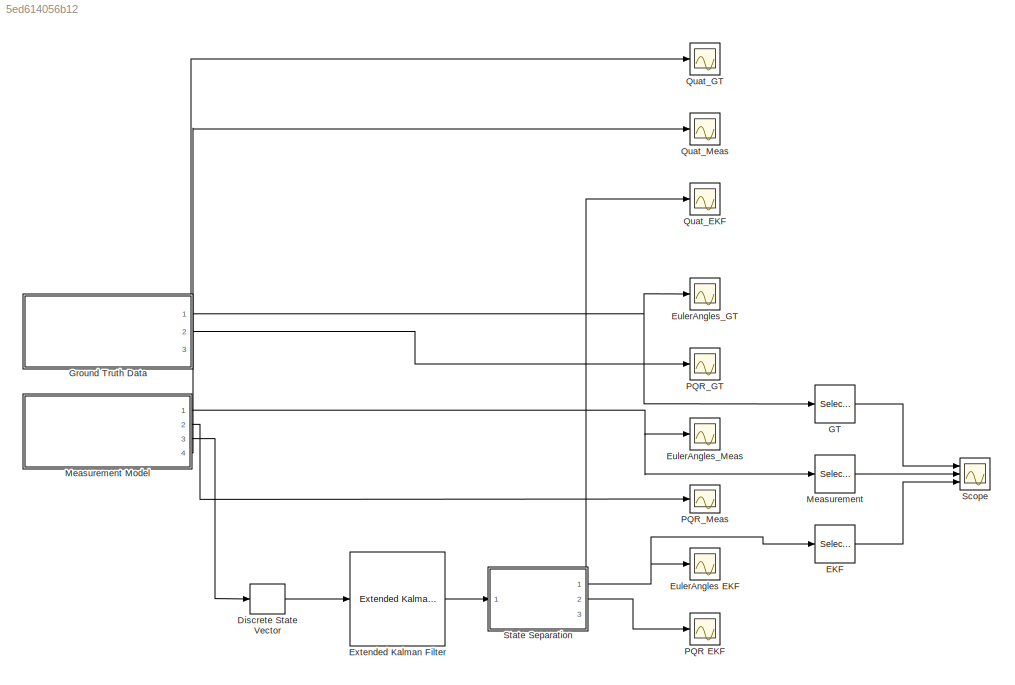
MODEL slx_5ed614056b12
KIND model
CONFIG AbsTol = auto
CONFIG EnableMultiTasking = off
CONFIG FixedStep = 0.1
CONFIG MaxStep = auto
CONFIG MinStep = auto
CONFIG RelTol = 1e-3
CONFIG SampleTimeConstraint = Unconstrained
CONFIG SolverName = FixedStepAuto
CONFIG StartTime = 0.0
CONFIG StopTime = 1000.0
BLOCK [ZeroOrderHold] Discrete State Vector
  SampleTime = Ts
BLOCK [Selector] EKF
  IndexOptions = Index vector (dialog)
  Indices = 2
  InputPortWidth = 3
  OutputSizes = 1
  Ports = [1, 1]
BLOCK [Scope] EulerAngles EKF
  Floating = off
  NumInputPorts = 1
  Ports = [1]
  ScopeSpecificationString = Simulink.scopes.TimeScopeBlockCfg('CurrentConfiguration', extmgr.ConfigurationSet(extmgr.Configuration('Core','General UI',true,'FigureColor',[1 1 1]),extmgr.Configuration('Core','Source UI',true),extmgr.Configuration('Sources','WiredSimulink',true,'DataLoggingVariableName','ScopeData3'),extmgr.Configuration('Visuals','Time Domain',true,'SerializedDisplays',{struct('MinYLimReal','-3.92656','MaxYLi...<+1839ch>
BLOCK [Scope] EulerAngles_GT
  Floating = off
  NumInputPorts = 1
  Ports = [1]
  ScopeSpecificationString = Simulink.scopes.TimeScopeBlockCfg('CurrentConfiguration', extmgr.ConfigurationSet(extmgr.Configuration('Core','General UI',true,'FigureColor',[1 1 1]),extmgr.Configuration('Core','Source UI',true),extmgr.Configuration('Sources','WiredSimulink',true,'DataLoggingVariableName','ScopeData1'),extmgr.Configuration('Visuals','Time Domain',true,'SerializedDisplays',{struct('MinYLimReal','-3.92667','MaxYLi...<+1883ch>
BLOCK [Scope] EulerAngles_Meas
  Floating = off
  NumInputPorts = 1
  Ports = [1]
  ScopeSpecificationString = Simulink.scopes.TimeScopeBlockCfg('CurrentConfiguration', extmgr.ConfigurationSet(extmgr.Configuration('Core','General UI',true,'FigureColor',[1 1 1]),extmgr.Configuration('Core','Source UI',true),extmgr.Configuration('Sources','WiredSimulink',true,'DataLoggingVariableName','ScopeData1'),extmgr.Configuration('Visuals','Time Domain',true,'SerializedDisplays',{struct('MinYLimReal','-3.92626','MaxYLi...<+1838ch>
BLOCK [Reference] Extended Kalman Filter  REF=sharedTrackingLibrary/Extended Kalman Filter
  Ports = [1, 1]
  SourceBlock = sharedTrackingLibrary/Extended Kalman Filter
  SourceProductBaseCode = AE,PW,CT,DR,TF,ID,LP,NV,AR,RO,RR,UV,VE
  SourceType = Extended Kalman Filter
BLOCK [Selector] GT
  IndexOptions = Index vector (dialog)
  Indices = 2
  InputPortWidth = 3
  OutputSizes = 1
  Ports = [1, 1]
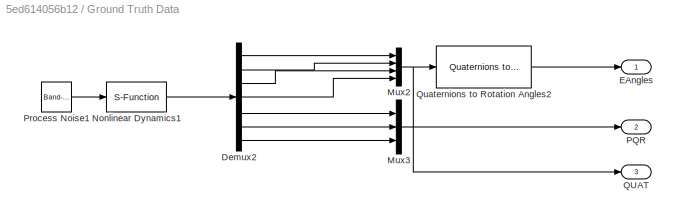
BLOCK [SubSystem] Ground Truth Data
  PortSchema = {"entries":[{"content":{"sides":[{"content":{"connectorIds":[]},"type":"ConnectorPlacement.EquallySpacedRectSide","uuid":"c56b2d2c-5651-4c6d-ac62-82145f13ec13"},{"content":{"connectorIds":["Out1","Out2"],"side":"RIGHT"},"type":"ConnectorPlacement.EquallySpacedRectSide","uuid":"522087ed-b7c5-4ea8-bed0-dd8f980d3eb3"},{"content":{"connectorIds":["Out3"],"side":"TOP"},"type":"ConnectorPlacement.Equall...<+248ch>
  Ports = [0, 3]
  RequestExecContextInheritance = off
BLOCK [Demux] Ground Truth Data/Demux2
  Outputs = 7
  Ports = [1, 7]
BLOCK [Outport] Ground Truth Data/EAngles
BLOCK [Mux] Ground Truth Data/Mux2
  DisplayOption = bar
  Ports = [4, 1]
BLOCK [Mux] Ground Truth Data/Mux3
  DisplayOption = bar
  Inputs = 3
  Ports = [3, 1]
BLOCK [S-Function] Ground Truth Data/Nonlinear Dynamics1
  EnableBusSupport = off
  FunctionName = sf_dyn
  Ports = [1, 1]
  SFcnIsStateOwnerBlock = off
  SFunctionDeploymentMode = off
BLOCK [Outport] Ground Truth Data/PQR
  Port = 2
BLOCK [Reference] Ground Truth Data/Process Noise1  REF=simulink/Sources/Band-Limited
White Noise
  Ports = [0, 1]
  SourceBlock = simulink/Sources/Band-Limited\nWhite Noise
  SourceProductBaseCode = SL
  SourceType = Band-Limited White Noise.
BLOCK [Outport] Ground Truth Data/QUAT
  Port = 3
BLOCK [Reference] Ground Truth Data/Quaternions to Rotation Angles2  REF=sharedtransform/Quaternions to Rotation Angles
  AttributesFormatString = Rotation Order: %<rotationOrder>
  Ports = [1, 1]
  SourceBlock = sharedtransform/Quaternions to Rotation Angles
  SourceProductBaseCode = AE,PW,DR,MT,UV,VE
  SourceType = Quat2Ang
BLOCK [Selector] Measurement
  IndexOptions = Index vector (dialog)
  Indices = 2
  InputPortWidth = 3
  OutputSizes = 1
  Ports = [1, 1]
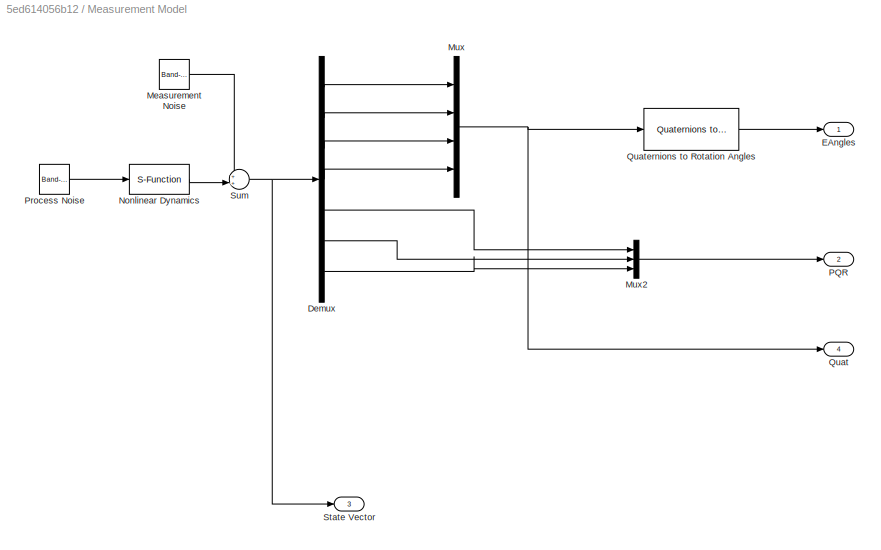
BLOCK [SubSystem] Measurement Model
  Ports = [0, 4]
  RequestExecContextInheritance = off
BLOCK [Demux] Measurement Model/Demux
  Outputs = 7
  Ports = [1, 7]
BLOCK [Outport] Measurement Model/EAngles
BLOCK [Reference] Measurement Model/Measurement Noise  REF=simulink/Sources/Band-Limited
White Noise
  Ports = [0, 1]
  SourceBlock = simulink/Sources/Band-Limited\nWhite Noise
  SourceProductBaseCode = SL
  SourceType = Band-Limited White Noise.
BLOCK [Mux] Measurement Model/Mux
  DisplayOption = bar
  Ports = [4, 1]
BLOCK [Mux] Measurement Model/Mux2
  DisplayOption = bar
  Inputs = 3
  Ports = [3, 1]
BLOCK [S-Function] Measurement Model/Nonlinear Dynamics
  EnableBusSupport = off
  FunctionName = sf_dyn
  Ports = [1, 1]
  SFcnIsStateOwnerBlock = off
  SFunctionDeploymentMode = off
BLOCK [Outport] Measurement Model/PQR
  Port = 2
BLOCK [Reference] Measurement Model/Process Noise  REF=simulink/Sources/Band-Limited
White Noise
  Ports = [0, 1]
  SourceBlock = simulink/Sources/Band-Limited\nWhite Noise
  SourceProductBaseCode = SL
  SourceType = Band-Limited White Noise.
BLOCK [Outport] Measurement Model/Quat
  Port = 4
BLOCK [Reference] Measurement Model/Quaternions to Rotation Angles  REF=sharedtransform/Quaternions to Rotation Angles
  AttributesFormatString = Rotation Order: %<rotationOrder>
  Ports = [1, 1]
  SourceBlock = sharedtransform/Quaternions to Rotation Angles
  SourceProductBaseCode = AE,PW,DR,MT,UV,VE
  SourceType = Quat2Ang
BLOCK [Outport] Measurement Model/State Vector
  Port = 3
BLOCK [Sum] Measurement Model/Sum
  Inputs = ++|
  Ports = [2, 1]
BLOCK [Scope] PQR EKF
  Floating = off
  NumInputPorts = 1
  Ports = [1]
  ScopeSpecificationString = Simulink.scopes.TimeScopeBlockCfg('CurrentConfiguration', extmgr.ConfigurationSet(extmgr.Configuration('Core','General UI',true),extmgr.Configuration('Core','Source UI',true),extmgr.Configuration('Sources','WiredSimulink',true,'DataLoggingVariableName','ScopeData4'),extmgr.Configuration('Visuals','Time Domain',true,'SerializedDisplays',{struct('MinYLimReal','-0.00053','MaxYLimReal','0.01139','YLab...<+1509ch>
BLOCK [Scope] PQR_GT
  Floating = off
  NumInputPorts = 1
  Ports = [1]
  ScopeSpecificationString = Simulink.scopes.TimeScopeBlockCfg('CurrentConfiguration', extmgr.ConfigurationSet(extmgr.Configuration('Core','General UI',true),extmgr.Configuration('Core','Source UI',true),extmgr.Configuration('Sources','WiredSimulink',true,'DataLoggingVariableName','ScopeData2'),extmgr.Configuration('Visuals','Time Domain',true,'SerializedDisplays',{struct('MinYLimReal','-0.00125','MaxYLimReal','0.01125','YLab...<+1462ch>
BLOCK [Scope] PQR_Meas
  Floating = off
  NumInputPorts = 1
  Ports = [1]
  ScopeSpecificationString = Simulink.scopes.TimeScopeBlockCfg('CurrentConfiguration', extmgr.ConfigurationSet(extmgr.Configuration('Core','General UI',true),extmgr.Configuration('Core','Source UI',true),extmgr.Configuration('Sources','WiredSimulink',true,'DataLoggingVariableName','ScopeData1'),extmgr.Configuration('Visuals','Time Domain',true,'SerializedDisplays',{struct('MinYLimReal','-0.00224','MaxYLimReal','0.01224','YLab...<+1464ch>
BLOCK [Scope] Quat_EKF
  Floating = off
  NumInputPorts = 1
  Ports = [1]
  ScopeSpecificationString = Simulink.scopes.TimeScopeBlockCfg('CurrentConfiguration', extmgr.ConfigurationSet(extmgr.Configuration('Core','General UI',true),extmgr.Configuration('Core','Source UI',true),extmgr.Configuration('Sources','WiredSimulink',true,'DataLoggingVariableName','ScopeData8'),extmgr.Configuration('Visuals','Time Domain',true,'SerializedDisplays',{struct('MinYLimReal','-1.27431','MaxYLimReal','1.26539','YLab...<+1482ch>
BLOCK [Scope] Quat_GT
  Floating = off
  NumInputPorts = 1
  Ports = [1]
  ScopeSpecificationString = Simulink.scopes.TimeScopeBlockCfg('CurrentConfiguration', extmgr.ConfigurationSet(extmgr.Configuration('Core','General UI',true),extmgr.Configuration('Core','Source UI',true),extmgr.Configuration('Sources','WiredSimulink',true,'DataLoggingVariableName','ScopeData6'),extmgr.Configuration('Visuals','Time Domain',true,'SerializedDisplays',{struct('MinYLimReal','-1.25','MaxYLimReal','1.25','YLabelReal...<+1434ch>
BLOCK [Scope] Quat_Meas
  Floating = off
  NumInputPorts = 1
  Ports = [1]
  ScopeSpecificationString = Simulink.scopes.TimeScopeBlockCfg('CurrentConfiguration', extmgr.ConfigurationSet(extmgr.Configuration('Core','General UI',true),extmgr.Configuration('Core','Source UI',true),extmgr.Configuration('Sources','WiredSimulink',true,'DataLoggingVariableName','ScopeData7'),extmgr.Configuration('Visuals','Time Domain',true,'SerializedDisplays',{struct('MinYLimReal','-1.32858','MaxYLimReal','1.33163','YLab...<+1488ch>
BLOCK [Scope] Scope
  Floating = off
  NumInputPorts = 3
  Ports = [3]
  ScopeSpecificationString = Simulink.scopes.TimeScopeBlockCfg('CurrentConfiguration', extmgr.ConfigurationSet(extmgr.Configuration('Core','General UI',true,'FigureColor',[1 1 1]),extmgr.Configuration('Core','Source UI',true),extmgr.Configuration('Sources','WiredSimulink',true,'DataLoggingVariableName','ScopeData5'),extmgr.Configuration('Visuals','Time Domain',true,'SerializedDisplays',{struct('MinYLimReal','-3.92672','MaxYLi...<+3270ch>
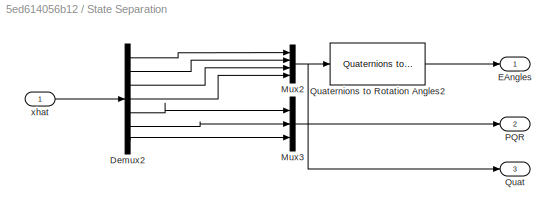
BLOCK [SubSystem] State Separation
  PortSchema = {"entries":[{"content":{"sides":[{"content":{"connectorIds":["In1"]},"type":"ConnectorPlacement.EquallySpacedRectSide","uuid":"2e6c3f1f-defd-4c1d-8479-8f40c1cb3474"},{"content":{"connectorIds":["Out1","Out2"],"side":"RIGHT"},"type":"ConnectorPlacement.EquallySpacedRectSide","uuid":"64ab90ad-7204-4c28-a9f1-f2fe7aed7ff2"},{"content":{"connectorIds":["Out3"],"side":"TOP"},"type":"ConnectorPlacement.E...<+253ch>
  Ports = [1, 3]
  RequestExecContextInheritance = off
BLOCK [Demux] State Separation/Demux2
  Outputs = 7
  Ports = [1, 7]
BLOCK [Outport] State Separation/EAngles
BLOCK [Mux] State Separation/Mux2
  DisplayOption = bar
  Ports = [4, 1]
BLOCK [Mux] State Separation/Mux3
  DisplayOption = bar
  Inputs = 3
  Ports = [3, 1]
BLOCK [Outport] State Separation/PQR
  Port = 2
BLOCK [Outport] State Separation/Quat
  Port = 3
BLOCK [Reference] State Separation/Quaternions to Rotation Angles2  REF=sharedtransform/Quaternions to Rotation Angles
  AttributesFormatString = Rotation Order: %<rotationOrder>
  Ports = [1, 1]
  SourceBlock = sharedtransform/Quaternions to Rotation Angles
  SourceProductBaseCode = AE,PW,DR,MT,UV,VE
  SourceType = Quat2Ang
BLOCK [Inport] State Separation/xhat
LINE Discrete State Vector:1 -> Extended Kalman Filter:1
LINE EKF:1 -> Scope:3
LINE Extended Kalman Filter:1 -> State Separation:1
LINE GT:1 -> Scope:1
LINE Ground Truth Data/Demux2:1 -> Ground Truth Data/Mux2:1
LINE Ground Truth Data/Demux2:2 -> Ground Truth Data/Mux2:2
LINE Ground Truth Data/Demux2:3 -> Ground Truth Data/Mux2:3
LINE Ground Truth Data/Demux2:4 -> Ground Truth Data/Mux2:4
LINE Ground Truth Data/Demux2:5 -> Ground Truth Data/Mux3:1
LINE Ground Truth Data/Demux2:6 -> Ground Truth Data/Mux3:2
LINE Ground Truth Data/Demux2:7 -> Ground Truth Data/Mux3:3
NET Ground Truth Data/Mux2:1 -> Ground Truth Data/QUAT:1, Ground Truth Data/Quaternions to Rotation Angles2:1
LINE Ground Truth Data/Mux3:1 -> Ground Truth Data/PQR:1
LINE Ground Truth Data/Nonlinear Dynamics1:1 -> Ground Truth Data/Demux2:1
LINE Ground Truth Data/Process Noise1:1 -> Ground Truth Data/Nonlinear Dynamics1:1
LINE Ground Truth Data/Quaternions to Rotation Angles2:1 -> Ground Truth Data/EAngles:1
NET Ground Truth Data:1 -> EulerAngles_GT:1, GT:1
LINE Ground Truth Data:2 -> PQR_GT:1
LINE Ground Truth Data:3 -> Quat_GT:1
LINE Measurement Model/Demux:1 -> Measurement Model/Mux:1
LINE Measurement Model/Demux:2 -> Measurement Model/Mux:2
LINE Measurement Model/Demux:3 -> Measurement Model/Mux:3
LINE Measurement Model/Demux:4 -> Measurement Model/Mux:4
LINE Measurement Model/Demux:5 -> Measurement Model/Mux2:1
LINE Measurement Model/Demux:6 -> Measurement Model/Mux2:2
LINE Measurement Model/Demux:7 -> Measurement Model/Mux2:3
LINE Measurement Model/Measurement Noise:1 -> Measurement Model/Sum:1
LINE Measurement Model/Mux2:1 -> Measurement Model/PQR:1
NET Measurement Model/Mux:1 -> Measurement Model/Quat:1, Measurement Model/Quaternions to Rotation Angles:1
LINE Measurement Model/Nonlinear Dynamics:1 -> Measurement Model/Sum:2
LINE Measurement Model/Process Noise:1 -> Measurement Model/Nonlinear Dynamics:1
LINE Measurement Model/Quaternions to Rotation Angles:1 -> Measurement Model/EAngles:1
NET Measurement Model/Sum:1 -> Measurement Model/Demux:1, Measurement Model/State Vector:1
NET Measurement Model:1 -> EulerAngles_Meas:1, Measurement:1
LINE Measurement Model:2 -> PQR_Meas:1
LINE Measurement Model:3 -> Discrete State Vector:1
LINE Measurement Model:4 -> Quat_Meas:1
LINE Measurement:1 -> Scope:2
LINE State Separation/Demux2:1 -> State Separation/Mux2:1
LINE State Separation/Demux2:2 -> State Separation/Mux2:2
LINE State Separation/Demux2:3 -> State Separation/Mux2:3
LINE State Separation/Demux2:4 -> State Separation/Mux2:4
LINE State Separation/Demux2:5 -> State Separation/Mux3:1
LINE State Separation/Demux2:6 -> State Separation/Mux3:2
LINE State Separation/Demux2:7 -> State Separation/Mux3:3
NET State Separation/Mux2:1 -> State Separation/Quat:1, State Separation/Quaternions to Rotation Angles2:1
LINE State Separation/Mux3:1 -> State Separation/PQR:1
LINE State Separation/Quaternions to Rotation Angles2:1 -> State Separation/EAngles:1
LINE State Separation/xhat:1 -> State Separation/Demux2:1
NET State Separation:1 -> EKF:1, EulerAngles EKF:1
LINE State Separation:2 -> PQR EKF:1
LINE State Separation:3 -> Quat_EKF:1
note: NET lines group one-source signal fan-out (src -> all destinations, sorted); 1:1 wires keep LINE
